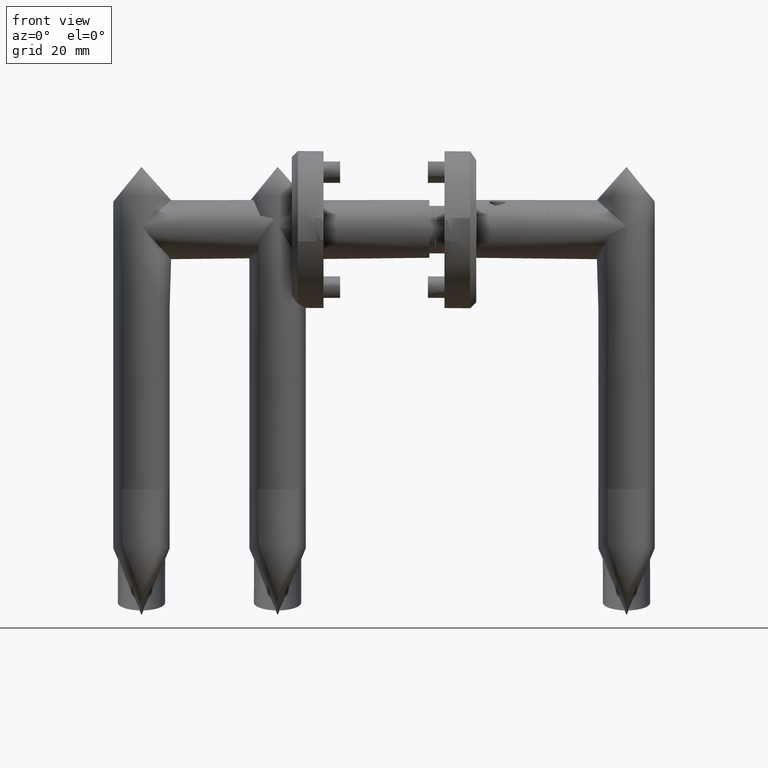
[diagram: clean part render]
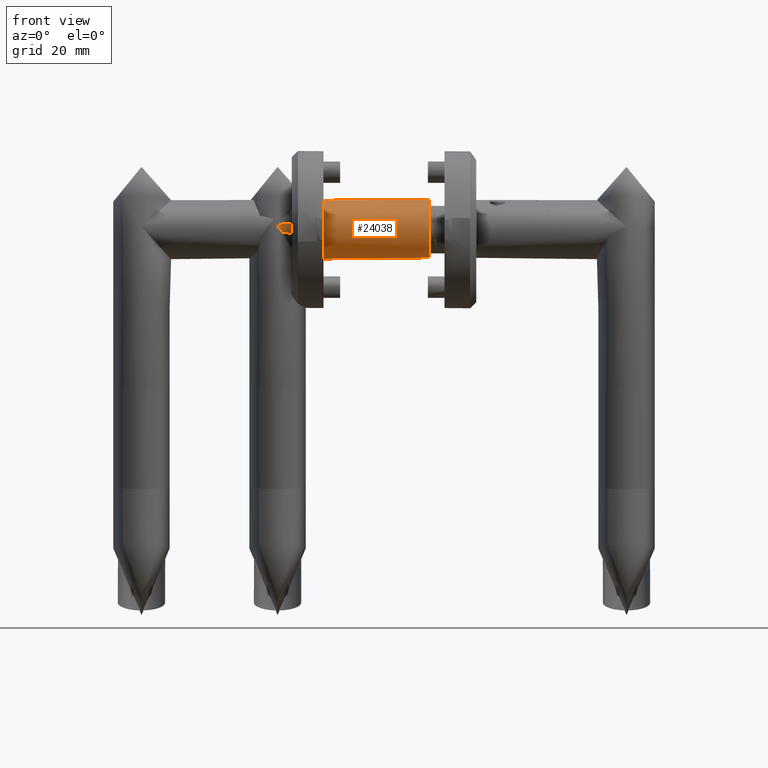
[diagram: same view with one face highlighted and labeled with its STEP entity id]
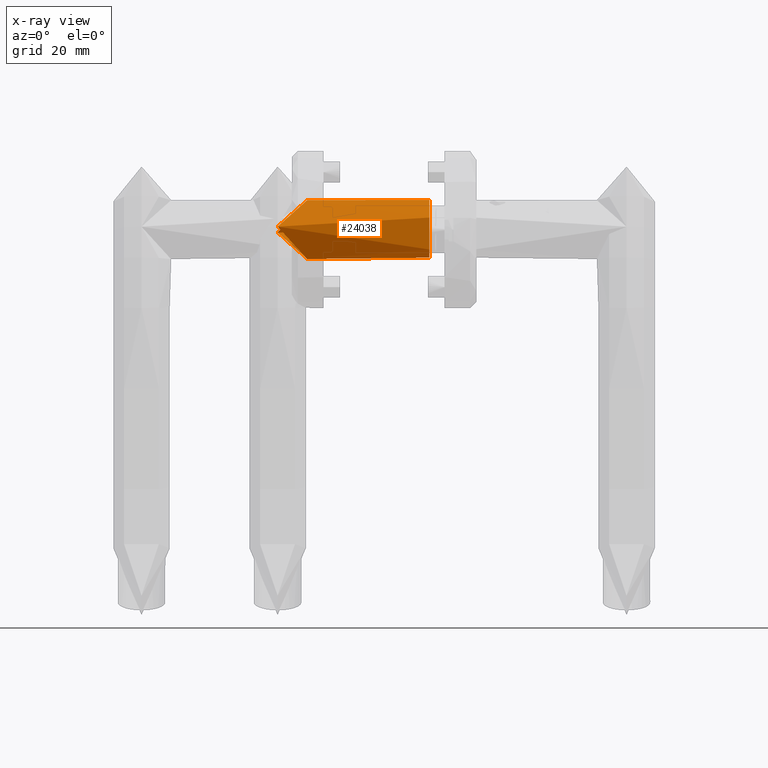
[diagram: x-ray of the same camera — body ghosted, the highlighted face saturated]
A machine part, front view. The second image highlights one B-rep face of the part: STEP entity #24038.
The next image is the same camera in x-ray: the body ghosted, the highlighted face saturated — about 0% of this face is hidden behind the body in this view.
In plain terms, the highlighted cylindrical surface (bore or boss wall) has radius 9.8 mm, axis along (1, -0, -0).
Its self-contained STEP definition (entity closure, byte-faithful):
#88 = CARTESIAN_POINT ( 'NONE',  ( -3.822092476344165000, 7.772197550461567200, 43.35162309113278700 ) ) ;
#95 = CARTESIAN_POINT ( 'NONE',  ( -0.4354537862329099800, 2.888818826240538800, 7.409396572554147300 ) ) ;
#129 = CARTESIAN_POINT ( 'NONE',  ( -19.55687169048619000, 0.9944342525369622700, 40.54689338331738200 ) ) ;
#232 = CARTESIAN_POINT ( 'NONE',  ( -8.679623662948470700, -9.735998293857719000, 50.06330580346536900 ) ) ;
#369 = CARTESIAN_POINT ( 'NONE',  ( -4.559211837365916500, -8.301884366891529900, 45.91049624265656300 ) ) ;
#377 = CARTESIAN_POINT ( 'NONE',  ( -0.1323713766238024900, -1.605290254277175600, 9.801990246998034500 ) ) ;
#665 = CARTESIAN_POINT ( 'NONE',  ( 1.734723475976807100E-015, 1.200153863164406100E-015, 10.26885880047777800 ) ) ;
#797 = CARTESIAN_POINT ( 'NONE',  ( -0.3288964127000877400, -2.522058451282503300, 8.897482933735240400 ) ) ;
#887 = CYLINDRICAL_SURFACE ( 'NONE', #30735, 9.799999999999998900 ) ;
#1030 = CARTESIAN_POINT ( 'NONE',  ( 1.734723475976807100E-015, 1.200153863164406100E-015, 10.26885880047777800 ) ) ;
#2133 = CARTESIAN_POINT ( 'NONE',  ( -10.78115167682853800, 9.750761067068380000, 50.20000000000000300 ) ) ;
#2191 = DIRECTION ( 'NONE',  ( -1.000000000000000000, 0.0000000000000000000, 0.0000000000000000000 ) ) ;
#2295 = CARTESIAN_POINT ( 'NONE',  ( -11.59908623459882700, -9.650260998292379700, 47.50679703102291300 ) ) ;
#2314 = VERTEX_POINT ( 'NONE', #27557 ) ;
#2432 = CARTESIAN_POINT ( 'NONE',  ( -8.958102105245132000, -9.764020545519423800, 50.06342446112105900 ) ) ;
#2497 = EDGE_CURVE ( 'NONE', #2314, #27583, #9742, .T. ) ;
#2564 = CARTESIAN_POINT ( 'NONE',  ( -9.933123786171968600, -9.803051068120685900, 49.11227937087824100 ) ) ;
#2616 = CIRCLE ( 'NONE', #27110, 9.799999999999998900 ) ;
#2953 = CARTESIAN_POINT ( 'NONE',  ( -0.3700320209831520200, 2.667527678341301600, 6.437236899734777800 ) ) ;
#2983 = CARTESIAN_POINT ( 'NONE',  ( -12.12738238625175100, 9.523585229207139200, 48.80344538462323100 ) ) ;
#3075 = CARTESIAN_POINT ( 'NONE',  ( -8.125438050755759500, -9.656883583677842600, 49.51716904174380600 ) ) ;
#3115 = CARTESIAN_POINT ( 'NONE',  ( -17.23546753403238100, 6.414054476674118100, 43.32092219073723500 ) ) ;
#3216 = CARTESIAN_POINT ( 'NONE',  ( -7.252903480286150300, 9.467308425313371200, 46.63530598957796500 ) ) ;
#3222 = CARTESIAN_POINT ( 'NONE',  ( -0.04322795053756368200, 0.9360888861668562600, 10.12572333441831200 ) ) ;
#3262 = CARTESIAN_POINT ( 'NONE',  ( -16.35884151676101800, 7.287737474074737600, 44.28620010502699200 ) ) ;
#3350 = CARTESIAN_POINT ( 'NONE',  ( -6.099047245898932000, -9.078745085069023400, 47.48967592933602300 ) ) ;
#3389 = CARTESIAN_POINT ( 'NONE',  ( -11.86073096395603000, 9.584779057249816600, 49.08163418561493800 ) ) ;
#3486 = CARTESIAN_POINT ( 'NONE',  ( -3.327717268254428300, 7.365594976994723100, 42.90097498391683200 ) ) ;
#3493 = CARTESIAN_POINT ( 'NONE',  ( -0.09556908775646549800, 1.365291422917513500, 5.059892389442349100 ) ) ;
#3628 = CARTESIAN_POINT ( 'NONE',  ( -5.058184410655903700, -8.595605264095139500, 46.42719150283925000 ) ) ;
#3636 = CARTESIAN_POINT ( 'NONE',  ( -0.1869176557382662700, -1.909812414266133900, 5.414643319666400800 ) ) ;
#3912 = CARTESIAN_POINT ( 'NONE',  ( -0.4183204291709260400, -2.832682197191989500, 8.043086749109450700 ) ) ;
#4049 = CARTESIAN_POINT ( 'NONE',  ( -0.3907851512414469200, -2.740880561465571100, 6.606534064987581400 ) ) ;
#6196 = CARTESIAN_POINT ( 'NONE',  ( -0.2156006298347865600, 2.044330871746715200, 9.456301505415478200 ) ) ;
#6464 = CARTESIAN_POINT ( 'NONE',  ( -1.365809117790841600, 5.003408993382722200, 41.21608856717416800 ) ) ;
#6472 = CARTESIAN_POINT ( 'NONE',  ( -0.3252775338832930600, 2.506290682298516700, 8.888870862167612700 ) ) ;
#6504 = CARTESIAN_POINT ( 'NONE',  ( -18.81430076159406900, 3.861443999490105700, 41.51591128650456900 ) ) ;
#6597 = CARTESIAN_POINT ( 'NONE',  ( -6.899350438750780700, -9.365099757242932200, 48.29676797993470000 ) ) ;
#6603 = CARTESIAN_POINT ( 'NONE',  ( -0.2986007168962589400, 2.400710657916890400, 9.040065071125264100 ) ) ;
#6740 = CARTESIAN_POINT ( 'NONE',  ( -0.3378688433032462400, 2.580359292329646300, 40.49050392256171400 ) ) ;
#6745 = CARTESIAN_POINT ( 'NONE',  ( -0.4354174939026728700, -2.888701178042784300, 7.683482782514622600 ) ) ;
#6888 = CARTESIAN_POINT ( 'NONE',  ( -0.4311242595999003600, -2.874746486377978800, 7.227262906925649800 ) ) ;
#7169 = CARTESIAN_POINT ( 'NONE',  ( 1.781215053811263000E-015, -0.3796331878166682200, 10.26885815542221400 ) ) ;
#7315 = CARTESIAN_POINT ( 'NONE',  ( -0.1326810078832712500, 1.607153852205576400, 5.199204663073087900 ) ) ;
#8365 = B_SPLINE_CURVE_WITH_KNOTS ( 'NONE', 3,
 ( #38109, #18962, #15476, #16000, #32362, #19230, #29023, #35588, #16432, #9991, #3216, #25931, #32507, #25648, #28746, #38388, #31969, #88, #3486, #25784, #9566, #13338, #6464, #12776, #41625, #35173, #22566, #6740, #12921, #38792, #28888, #41492, #9714, #32226, #9851, #19368, #29148, #22850, #10125, #13196, #32098, #35723, #13052, #19636, #22441, #35314, #369, #3628, #35457, #3350, #16146, #6597, #38938, #38521, #3075, #29293, #16287, #26063, #232, #38647, #22302 ),
 .UNSPECIFIED., .F., .F.,
 ( 4, 2, 1, 2, 2, 2, 2, 2, 2, 2, 2, 2, 2, 2, 2, 2, 2, 2, 2, 2, 2, 2, 2, 2, 2, 2, 2, 2, 2, 2, 4 ),
 ( -1.979899227334577800E-005, 0.0002697787099651128800, 0.0005593564122035715200, 0.001138511816680491900, 0.002296822625634322100, 0.004613444243541996900, 0.005771755052495834000, 0.006930065861449672000, 0.009246687479357362800, 0.01040499828831120700, 0.01156330909726505300, 0.01387993071517273400, 0.01503824152412657500, 0.01619655233308042000, 0.01735486314203426100, 0.01851317395098810500, 0.01967148475994194900, 0.02082979556889579000, 0.02198810637784963400, 0.02314641718680347800, 0.02430472799575731900, 0.02546303880471115900, 0.02777966042261884700, 0.03009628204052653200, 0.03241290365843421700, 0.03357121446738805400, 0.03472952527634189100, 0.03588783608529573500, 0.03646699148977265000, 0.03675656919201111800, 0.03704614689424958600 ),
 .UNSPECIFIED. ) ;
#8789 = CARTESIAN_POINT ( 'NONE',  ( -18.29762710991624900, -4.894691133510471000, 41.34582834160446700 ) ) ;
#8930 = CARTESIAN_POINT ( 'NONE',  ( -9.306582892055336800, -9.789312447703784100, 49.72240862092913000 ) ) ;
#9061 = CARTESIAN_POINT ( 'NONE',  ( -12.70426136182720200, -9.364300318384229300, 46.45657831840183900 ) ) ;
#9110 = B_SPLINE_CURVE_WITH_KNOTS ( 'NONE', 3,
 ( #9576, #25260, #25791, #28478, #28898, #3222, #25655, #12926, #41351, #9303, #32233, #38529, #6196, #15738, #28619, #6603, #6472, #9724, #32106, #22171, #13059, #19378, #95, #29031, #9860, #35462, #31700, #9442, #38122, #18968, #2953, #31837, #12634, #35043, #38257, #32784, #7315, #38798, #23273, #3493, #20060, #16723, #32514, #32641, #13619, #32372, #20197, #22713, #23136, #10543, #39208, #9999, #25935, #26495, #32928, #29712, #3636, #38943, #39354, #13203, #13488, #4049, #13761, #36009, #13348, #35596, #6888, #16996, #36146, #16437, #6745, #19642, #3912, #16863, #26071, #10403, #797, #35877, #39066, #19927, #29153, #377, #26363, #29434, #22860, #29300, #7169, #665 ),
 .UNSPECIFIED., .T., .F.,
 ( 4, 3, 3, 3, 3, 3, 3, 3, 3, 3, 3, 3, 3, 3, 3, 3, 3, 3, 3, 3, 3, 3, 3, 3, 3, 3, 3, 3, 3, 4 ),
 ( 0.0000000000000000000, 0.03448275862068965500, 0.06896551724137930900, 0.1034482758620689600, 0.1379310344827586200, 0.1724137931034482900, 0.2068965517241379300, 0.2413793103448276000, 0.2758620689655172400, 0.3103448275862069100, 0.3448275862068965700, 0.3793103448275861900, 0.4137931034482758600, 0.4482758620689655200, 0.4827586206896551900, 0.5172413793103448600, 0.5517241379310344800, 0.5862068965517240900, 0.6206896551724138100, 0.6551724137931034300, 0.6896551724137931500, 0.7241379310344827600, 0.7586206896551723800, 0.7931034482758621000, 0.8275862068965517100, 0.8620689655172413300, 0.8965517241379310500, 0.9310344827586206600, 0.9655172413793103900, 1.000000000000000000 ),
 .UNSPECIFIED. ) ;
#9303 = CARTESIAN_POINT ( 'NONE',  ( -0.1328079027327934400, 1.607916961330561700, 9.800305463808477700 ) ) ;
#9342 = CARTESIAN_POINT ( 'NONE',  ( -16.61481542424700900, -7.050376245932393500, 42.83067999288551400 ) ) ;
#9442 = CARTESIAN_POINT ( 'NONE',  ( -0.4182749411672410700, 2.832531539183548400, 6.956191829310237800 ) ) ;
#9566 = CARTESIAN_POINT ( 'NONE',  ( -2.384100189178385100, 6.440720921956224900, 42.06158807770409400 ) ) ;
#9576 = CARTESIAN_POINT ( 'NONE',  ( 1.734723475976807100E-015, 1.200153863164406100E-015, 10.26885880047777800 ) ) ;
#9613 = CARTESIAN_POINT ( 'NONE',  ( -12.92173237505569500, 9.305714617253128700, 47.97153941725662200 ) ) ;
#9714 = CARTESIAN_POINT ( 'NONE',  ( -0.005340164053814071800, -0.5053081143249752400, 40.54374387028988000 ) ) ;
#9724 = CARTESIAN_POINT ( 'NONE',  ( -0.3496586795409334900, 2.595515547792911700, 8.728946815938078500 ) ) ;
#9742 = B_SPLINE_CURVE_WITH_KNOTS ( 'NONE', 3,
 ( #27959, #28236, #2432, #28511, #8930, #21796, #2564, #28092, #40680, #2295, #25289, #9061, #37616, #34801, #15513, #18458, #22071, #15637, #38021, #9342, #11877, #31463, #8789, #12270, #37889, #18866, #34401, #41102, #21933, #41244, #15100, #37488, #21518, #9754, #32137, #129, #41668, #35076, #29066, #38431, #6504, #41392, #25428, #12532, #19274, #3115, #22478, #3262, #32268, #35217, #22609, #25690, #22343, #9613, #2983, #3389, #12822, #28790, #28931, #38691, #16040, #25558, #34944 ),
 .UNSPECIFIED., .F., .F.,
 ( 4, 2, 1, 2, 2, 2, 2, 2, 2, 2, 2, 2, 2, 2, 2, 2, 2, 2, 2, 2, 2, 2, 2, 2, 2, 2, 2, 2, 2, 2, 2, 4 ),
 ( -2.027826707009775800E-005, 0.0002694207216723776500, 0.0005591197104148529900, 0.001138517687899807600, 0.002297313642869726700, 0.004614905552809579200, 0.005773701507779512900, 0.006932497462749444800, 0.009250089372689323400, 0.01040888532765925700, 0.01156768128262919200, 0.01388527319256904100, 0.01504406914753896600, 0.01620286510250889100, 0.01736166105747881400, 0.01852045701244874100, 0.01909985498993370400, 0.01967925296741866400, 0.02083804892238859000, 0.02199684487735851700, 0.02315564083232844400, 0.02431443678729837100, 0.02547323274226829700, 0.02779082465220814400, 0.02894962060717807100, 0.03010841656214799700, 0.03242600847208784700, 0.03474360038202770800, 0.03590239633699763400, 0.03648179431448259800, 0.03677149330322507200, 0.03706119229196754700 ),
 .UNSPECIFIED. ) ;
#9754 = CARTESIAN_POINT ( 'NONE',  ( -19.60192454410137900, 0.02348972607566926800, 40.42801447100384800 ) ) ;
#9851 = CARTESIAN_POINT ( 'NONE',  ( -0.1307141320830874400, -1.639774746771381500, 40.80697728036403000 ) ) ;
#9860 = CARTESIAN_POINT ( 'NONE',  ( -0.4311381815473979700, 2.874791857985726600, 7.227702611852202500 ) ) ;
#9991 = CARTESIAN_POINT ( 'NONE',  ( -8.065908994393673500, 9.661441216882034100, 47.44126124070675100 ) ) ;
#9999 = CARTESIAN_POINT ( 'NONE',  ( -0.06310637153082374100, -1.110361413178787100, 4.943845459730386700 ) ) ;
#10125 = CARTESIAN_POINT ( 'NONE',  ( -0.7358922864373969000, -3.742833422756055100, 41.65656791852513400 ) ) ;
#10403 = CARTESIAN_POINT ( 'NONE',  ( -0.3697869579638371500, -2.666661204917319100, 8.564758903595306400 ) ) ;
#10543 = CARTESIAN_POINT ( 'NONE',  ( -6.897812140205509200E-005, -0.3805590716564420400, 4.731358774623267900 ) ) ;
#11877 = CARTESIAN_POINT ( 'NONE',  ( -17.30495411124256900, -6.336696433568049800, 42.21059699699834100 ) ) ;
#12270 = CARTESIAN_POINT ( 'NONE',  ( -18.47416030253962300, -4.575325320419398000, 41.19626981487196800 ) ) ;
#12490 = FACE_OUTER_BOUND ( 'NONE', #17864, .T. ) ;
#12532 = CARTESIAN_POINT ( 'NONE',  ( -18.17973878339824300, 5.092052224232015900, 42.25545421881975700 ) ) ;
#12634 = CARTESIAN_POINT ( 'NONE',  ( -0.2719463490837708600, 2.308787249372522300, 5.797056132452379300 ) ) ;
#12776 = CARTESIAN_POINT ( 'NONE',  ( -1.184172876111465600, 4.684468030650846200, 41.07368002647167100 ) ) ;
#12822 = CARTESIAN_POINT ( 'NONE',  ( -11.45794066649739100, 9.659704093133477400, 49.50017176917407400 ) ) ;
#12921 = CARTESIAN_POINT ( 'NONE',  ( -0.1636583601528391900, 1.825130106099597900, 40.41139842623707100 ) ) ;
#12926 = CARTESIAN_POINT ( 'NONE',  ( -0.08304751354218524500, 1.285183879410968200, 9.986366251840268000 ) ) ;
#13052 = CARTESIAN_POINT ( 'NONE',  ( -1.881425352976844500, -5.811317283478362400, 43.02171932004215900 ) ) ;
#13059 = CARTESIAN_POINT ( 'NONE',  ( -0.4354170493484947900, 2.888699736959099000, 7.863310219945206300 ) ) ;
#13160 = CARTESIAN_POINT ( 'NONE',  ( 0.0000000000000000000, 0.0000000000000000000, 0.0000000000000000000 ) ) ;
#13196 = CARTESIAN_POINT ( 'NONE',  ( -0.8770654420899091100, -4.066936604295786900, 41.83370123779437200 ) ) ;
#13203 = CARTESIAN_POINT ( 'NONE',  ( -0.3288534424449626700, -2.521980208999732700, 6.101314800225423200 ) ) ;
#13338 = CARTESIAN_POINT ( 'NONE',  ( -1.950744654241739900, 5.911674896972742800, 41.69064932271206900 ) ) ;
#13348 = CARTESIAN_POINT ( 'NONE',  ( -0.4239977293207165000, -2.851483284773357800, 7.047203057589163300 ) ) ;
#13488 = CARTESIAN_POINT ( 'NONE',  ( -0.3701412483092855200, -2.667913777310291700, 6.438127643400195100 ) ) ;
#13619 = CARTESIAN_POINT ( 'NONE',  ( -0.02720517741864077500, 0.7534884233588036200, 4.820716758195219500 ) ) ;
#13761 = CARTESIAN_POINT ( 'NONE',  ( -0.4071927410784368900, -2.795831505876216600, 6.779938730028306700 ) ) ;
#14172 = VERTEX_POINT ( 'NONE', #1030 ) ;
#14882 = EDGE_CURVE ( 'NONE', #32702, #32702, #2616, .T. ) ;
#15100 = CARTESIAN_POINT ( 'NONE',  ( -19.57236581195230200, -0.7606787115702364800, 40.39809434189678700 ) ) ;
#15117 = ORIENTED_EDGE ( 'NONE', *, *, #14882, .T. ) ;
#15476 = CARTESIAN_POINT ( 'NONE',  ( -10.64531852604271300, 9.763712888130880800, 50.06008156666619200 ) ) ;
#15513 = CARTESIAN_POINT ( 'NONE',  ( -14.34286558021196900, -8.703682513178099700, 44.91666299725849900 ) ) ;
#15637 = CARTESIAN_POINT ( 'NONE',  ( -15.88346130698386600, -7.689919755506922500, 43.49527833209285900 ) ) ;
#15738 = CARTESIAN_POINT ( 'NONE',  ( -0.2438665581174955000, 2.176849510962126600, 9.329083526198767000 ) ) ;
#16000 = CARTESIAN_POINT ( 'NONE',  ( -10.50932588373585700, 9.774533726116372300, 49.92022160000834700 ) ) ;
#16040 = CARTESIAN_POINT ( 'NONE',  ( -10.91699050626886700, 9.736375249644263300, 50.05992855177406400 ) ) ;
#16146 = CARTESIAN_POINT ( 'NONE',  ( -6.631038728587080700, -9.277841778562420300, 48.02717589811511800 ) ) ;
#16287 = CARTESIAN_POINT ( 'NONE',  ( -8.471185304002064600, -9.709744981693287300, 49.85824578862048600 ) ) ;
#16432 = CARTESIAN_POINT ( 'NONE',  ( -8.608199331678335400, 9.742461648893526100, 47.98503234901372800 ) ) ;
#16437 = CARTESIAN_POINT ( 'NONE',  ( -0.4354462700851997600, -2.888794461282913100, 7.501713492238867100 ) ) ;
#16723 = CARTESIAN_POINT ( 'NONE',  ( -0.07276660665860228100, 1.195263767240169600, 4.977640773624900200 ) ) ;
#16863 = CARTESIAN_POINT ( 'NONE',  ( -0.4070522529736656000, -2.795362649473176000, 8.221942249555910500 ) ) ;
#16996 = CARTESIAN_POINT ( 'NONE',  ( -0.4340130416390279300, -2.884161104360444900, 7.318411786602184500 ) ) ;
#17864 = EDGE_LOOP ( 'NONE', ( #32353, #25394 ) ) ;
#18458 = CARTESIAN_POINT ( 'NONE',  ( -14.86927786340678600, -8.409879499118000400, 44.42759415970173400 ) ) ;
#18866 = CARTESIAN_POINT ( 'NONE',  ( -18.93449609592971300, -3.569987768325951500, 40.81829364762172200 ) ) ;
#18962 = CARTESIAN_POINT ( 'NONE',  ( -10.71409871224507300, 9.757508143341192800, 50.13089407640329400 ) ) ;
#18968 = CARTESIAN_POINT ( 'NONE',  ( -0.3906389789736953200, 2.740375265106211900, 6.605224161148242100 ) ) ;
#19230 = CARTESIAN_POINT ( 'NONE',  ( -10.10152906238359800, 9.796302465062572300, 49.50195322481130900 ) ) ;
#19274 = CARTESIAN_POINT ( 'NONE',  ( -17.63713876241768500, 5.920753984737297400, 42.87238864416615800 ) ) ;
#19368 = CARTESIAN_POINT ( 'NONE',  ( -0.2017842117139969600, -2.012639279160209700, 40.92258249850716100 ) ) ;
#19378 = CARTESIAN_POINT ( 'NONE',  ( -0.4354464388560269600, 2.888795008384250600, 7.500179302032359300 ) ) ;
#19636 = CARTESIAN_POINT ( 'NONE',  ( -2.277872032952917600, -6.312778592837057400, 43.46647646055355100 ) ) ;
#19642 = CARTESIAN_POINT ( 'NONE',  ( -0.4295886053681864900, -2.870001744910803100, 7.864231248662992600 ) ) ;
#19927 = CARTESIAN_POINT ( 'NONE',  ( -0.1867671034181226700, -1.908973228751783300, 9.585925994989818100 ) ) ;
#20060 = CARTESIAN_POINT ( 'NONE',  ( -0.08378542986458936700, 1.281533704978539800, 5.016836817288117700 ) ) ;
#20197 = CARTESIAN_POINT ( 'NONE',  ( -0.005513396427664056300, 0.3785440804593344100, 4.748903933067063000 ) ) ;
#21518 = CARTESIAN_POINT ( 'NONE',  ( -19.60040654923692900, -0.1744445830851520100, 40.41452319263793700 ) ) ;
#21796 = CARTESIAN_POINT ( 'NONE',  ( -9.515500659121562100, -9.796858842082826900, 49.51869023826071700 ) ) ;
#21933 = CARTESIAN_POINT ( 'NONE',  ( -19.45508213700260900, -1.722993967992708400, 40.44210275531225600 ) ) ;
#22071 = CARTESIAN_POINT ( 'NONE',  ( -15.63315377116691900, -7.881004370855841000, 43.72451535855966400 ) ) ;
#22171 = CARTESIAN_POINT ( 'NONE',  ( -0.4110574812960955400, 2.812537379043493300, 8.228122392532284800 ) ) ;
#22302 = CARTESIAN_POINT ( 'NONE',  ( -8.818848323171447800, -9.750761067068374600, 50.20000000000000300 ) ) ;
#22343 = CARTESIAN_POINT ( 'NONE',  ( -13.44658655059032300, 9.113597222512583000, 47.41756045176468600 ) ) ;
#22441 = CARTESIAN_POINT ( 'NONE',  ( -3.144218692833239200, -7.220398735941332200, 44.41406965345219500 ) ) ;
#22478 = CARTESIAN_POINT ( 'NONE',  ( -16.58307214251814800, 7.080007088926005400, 44.04035523062489000 ) ) ;
#22566 = CARTESIAN_POINT ( 'NONE',  ( -0.4487529370178579600, 2.956471165920349100, 40.55400409517233800 ) ) ;
#22609 = CARTESIAN_POINT ( 'NONE',  ( -14.95615871285661300, 8.354104872386383100, 45.80799762448896900 ) ) ;
#22713 = CARTESIAN_POINT ( 'NONE',  ( 3.424645548386197600E-005, 0.1876088442727172600, 4.731033200820212100 ) ) ;
#22850 = CARTESIAN_POINT ( 'NONE',  ( -0.4881121991982217400, -3.074995326637736800, 41.33309563450126200 ) ) ;
#22860 = CARTESIAN_POINT ( 'NONE',  ( -0.06291557388091173500, -1.108687006611483300, 10.05682214906751400 ) ) ;
#23136 = CARTESIAN_POINT ( 'NONE',  ( -1.617368114437134400E-007, -0.001780461037002488400, 4.731141725421230700 ) ) ;
#23273 = CARTESIAN_POINT ( 'NONE',  ( -0.1073527456483416300, 1.449049140856487200, 5.102947961596580500 ) ) ;
#24038 = ADVANCED_FACE ( 'NONE', ( #34543, #12490, #33017 ), #887, .T. ) ;
#24258 = EDGE_LOOP ( 'NONE', ( #15117 ) ) ;
#24498 = DIRECTION ( 'NONE',  ( 1.000000000000000000, 0.0000000000000000000, 0.0000000000000000000 ) ) ;
#25192 = CARTESIAN_POINT ( 'NONE',  ( -9.799999999999993600, 0.0000000000000000000, 50.20000000000000300 ) ) ;
#25260 = CARTESIAN_POINT ( 'NONE',  ( 1.711297334326909700E-015, 0.1912892882332818400, 10.26885912550789300 ) ) ;
#25289 = CARTESIAN_POINT ( 'NONE',  ( -12.42826732350760300, -9.445277816446356700, 46.71811580347324600 ) ) ;
#25394 = ORIENTED_EDGE ( 'NONE', *, *, #28325, .T. ) ;
#25428 = CARTESIAN_POINT ( 'NONE',  ( -18.35053891930184000, 4.800909079189975300, 42.05919177361800400 ) ) ;
#25558 = CARTESIAN_POINT ( 'NONE',  ( -10.84823272582774800, 9.744011164854978100, 50.13086513213404800 ) ) ;
#25648 = CARTESIAN_POINT ( 'NONE',  ( -6.168333216820011300, 9.106957558256326000, 45.57331220558721400 ) ) ;
#25655 = CARTESIAN_POINT ( 'NONE',  ( -0.06313773203987446700, 1.110636382788912300, 10.05604479312929000 ) ) ;
#25690 = CARTESIAN_POINT ( 'NONE',  ( -14.46359547617758400, 8.637483721530895100, 46.33597306813465600 ) ) ;
#25784 = CARTESIAN_POINT ( 'NONE',  ( -3.084460778553992400, 7.145008534976538400, 42.68210824362568400 ) ) ;
#25791 = CARTESIAN_POINT ( 'NONE',  ( -0.005687839129654957000, 0.3820111784199187700, 10.25051546661125500 ) ) ;
#25931 = CARTESIAN_POINT ( 'NONE',  ( -6.981974205617506300, 9.390431377133850800, 46.36827942118516400 ) ) ;
#25935 = CARTESIAN_POINT ( 'NONE',  ( -0.08299369442343859600, -1.284755754752715500, 5.013437405875519600 ) ) ;
#26063 = CARTESIAN_POINT ( 'NONE',  ( -8.540575620484421600, -9.718989461199511100, 49.92656147905418600 ) ) ;
#26071 = CARTESIAN_POINT ( 'NONE',  ( -0.3902322305957118800, -2.738962581734727000, 8.398396888525338600 ) ) ;
#26363 = CARTESIAN_POINT ( 'NONE',  ( -0.1063847172770723400, -1.448789352924916500, 9.902254952866767800 ) ) ;
#26495 = CARTESIAN_POINT ( 'NONE',  ( -0.1071180369502164200, -1.453630875098663300, 5.100469196099361100 ) ) ;
#27110 = AXIS2_PLACEMENT_3D ( 'NONE', #40982, #31058, #24498 ) ;
#27557 = CARTESIAN_POINT ( 'NONE',  ( -8.818848323171447800, -9.750761067068374600, 50.20000000000000300 ) ) ;
#27583 = VERTEX_POINT ( 'NONE', #2133 ) ;
#27959 = CARTESIAN_POINT ( 'NONE',  ( -8.818848323171447800, -9.750761067068374600, 50.20000000000000300 ) ) ;
#28092 = CARTESIAN_POINT ( 'NONE',  ( -10.21125631262081000, -9.795327149317227400, 48.84270483719772900 ) ) ;
#28236 = CARTESIAN_POINT ( 'NONE',  ( -8.887595518348112100, -9.757678622053447300, 50.13253868357889300 ) ) ;
#28325 = EDGE_CURVE ( 'NONE', #27583, #2314, #8365, .T. ) ;
#28478 = CARTESIAN_POINT ( 'NONE',  ( -0.01643922643483272700, 0.5673963252938691900, 10.21492501809459300 ) ) ;
#28511 = CARTESIAN_POINT ( 'NONE',  ( -9.097514050451367900, -9.775039783510079500, 49.92691211887256500 ) ) ;
#28619 = CARTESIAN_POINT ( 'NONE',  ( -0.2719238999092248300, 2.295130633535264600, 9.191259280082913800 ) ) ;
#28746 = CARTESIAN_POINT ( 'NONE',  ( -5.362739603939121300, 8.757479006271635700, 44.79546316370758800 ) ) ;
#28790 = CARTESIAN_POINT ( 'NONE',  ( -11.32320770502743400, 9.681864156772459000, 49.63989365649529600 ) ) ;
#28888 = CARTESIAN_POINT ( 'NONE',  ( -0.01497381710599176800, 0.6672929139056486000, 40.40799774066881200 ) ) ;
#28898 = CARTESIAN_POINT ( 'NONE',  ( -0.02719061374001049600, 0.7527814721678195400, 10.17933456957793200 ) ) ;
#28931 = CARTESIAN_POINT ( 'NONE',  ( -11.12039660128999200, 9.710881351917258500, 49.84978358320229600 ) ) ;
#29023 = CARTESIAN_POINT ( 'NONE',  ( -9.693965110206585600, 9.803193543532556100, 49.08552853855917400 ) ) ;
#29031 = CARTESIAN_POINT ( 'NONE',  ( -0.4340157285619865000, 2.884169698778232100, 7.318730521170618200 ) ) ;
#29066 = CARTESIAN_POINT ( 'NONE',  ( -19.18512488966721500, 2.845879091641908300, 41.06269556927359300 ) ) ;
#29148 = CARTESIAN_POINT ( 'NONE',  ( -0.3805385717792937300, -2.729507206215722200, 41.18560233328551600 ) ) ;
#29153 = CARTESIAN_POINT ( 'NONE',  ( -0.1583580359705326900, -1.761791155629434600, 9.701725541129302900 ) ) ;
#29293 = CARTESIAN_POINT ( 'NONE',  ( -8.263415855200518600, -9.679798220480790900, 49.65346597771015500 ) ) ;
#29300 = CARTESIAN_POINT ( 'NONE',  ( -0.02300272790866360300, -0.7581509683960955300, 10.19646775247138100 ) ) ;
#29434 = CARTESIAN_POINT ( 'NONE',  ( -0.08287199686703580800, -1.283955025719177400, 9.986999347365580700 ) ) ;
#29712 = CARTESIAN_POINT ( 'NONE',  ( -0.1590607074081907000, -1.765585746208683900, 5.301093781256599700 ) ) ;
#30735 = AXIS2_PLACEMENT_3D ( 'NONE', #25192, #31506, #2191 ) ;
#31058 = DIRECTION ( 'NONE',  ( 0.0000000000000000000, 0.0000000000000000000, 1.000000000000000000 ) ) ;
#31463 = CARTESIAN_POINT ( 'NONE',  ( -17.72911590430352600, -5.803429343303750300, 41.83552937871947800 ) ) ;
#31506 = DIRECTION ( 'NONE',  ( -1.224646799147353200E-016, -0.0000000000000000000, -1.000000000000000000 ) ) ;
#31700 = CARTESIAN_POINT ( 'NONE',  ( -0.4238803341273111900, 2.851097353851670800, 7.045040297815031500 ) ) ;
#31837 = CARTESIAN_POINT ( 'NONE',  ( -0.3288181050020654300, 2.521832504811480000, 6.101262376907850000 ) ) ;
#31969 = CARTESIAN_POINT ( 'NONE',  ( -4.073405309276757300, 7.958678543659710900, 43.58353818036720600 ) ) ;
#32098 = CARTESIAN_POINT ( 'NONE',  ( -1.184743794750603900, -4.683598508200599800, 42.20823474367890800 ) ) ;
#32106 = CARTESIAN_POINT ( 'NONE',  ( -0.3701249467926541700, 2.667856158209772400, 8.562005341469481200 ) ) ;
#32137 = CARTESIAN_POINT ( 'NONE',  ( -19.58880334273469600, 0.6102747407669542000, 40.48569725387709200 ) ) ;
#32226 = CARTESIAN_POINT ( 'NONE',  ( -0.03287847892083076800, -0.8872922901271068600, 40.61808110777844400 ) ) ;
#32233 = CARTESIAN_POINT ( 'NONE',  ( -0.1588885663860089000, 1.764720323458921700, 9.699615155719485000 ) ) ;
#32268 = CARTESIAN_POINT ( 'NONE',  ( -15.90204479649042200, 7.674279694840770100, 44.78451622042364700 ) ) ;
#32353 = ORIENTED_EDGE ( 'NONE', *, *, #2497, .T. ) ;
#32362 = CARTESIAN_POINT ( 'NONE',  ( -10.30537434972743700, 9.788618540897056500, 49.71069382279221600 ) ) ;
#32372 = CARTESIAN_POINT ( 'NONE',  ( -0.01635928692315241600, 0.5660162519090690100, 4.784810345631141700 ) ) ;
#32507 = CARTESIAN_POINT ( 'NONE',  ( -6.440210824276055800, 9.210498766144715100, 45.83778407005111400 ) ) ;
#32514 = CARTESIAN_POINT ( 'NONE',  ( -0.06283003490976067600, 1.107935499451391500, 4.942878598907392500 ) ) ;
#32641 = CARTESIAN_POINT ( 'NONE',  ( -0.04295689141207745300, 0.9332789638738352400, 4.873354249472378700 ) ) ;
#32702 = VERTEX_POINT ( 'NONE', #13160 ) ;
#32784 = CARTESIAN_POINT ( 'NONE',  ( -0.1586894398083998100, 1.763599240156405100, 5.299602542095833300 ) ) ;
#32928 = CARTESIAN_POINT ( 'NONE',  ( -0.1330893721792035500, -1.609608310653673600, 5.200781488677980800 ) ) ;
#33017 = FACE_OUTER_BOUND ( 'NONE', #24258, .T. ) ;
#34242 = EDGE_CURVE ( 'NONE', #14172, #14172, #9110, .T. ) ;
#34401 = CARTESIAN_POINT ( 'NONE',  ( -19.18307453643759800, -2.853374114308970400, 40.62657390618714000 ) ) ;
#34543 = FACE_BOUND ( 'NONE', #36098, .T. ) ;
#34801 = CARTESIAN_POINT ( 'NONE',  ( -13.53081543896512300, -9.066914877889761500, 45.67728920245188100 ) ) ;
#34944 = CARTESIAN_POINT ( 'NONE',  ( -10.78115167682853800, 9.750761067068380000, 50.20000000000000300 ) ) ;
#35043 = CARTESIAN_POINT ( 'NONE',  ( -0.2151425684714988200, 2.042182170442419200, 5.541637852098261000 ) ) ;
#35076 = CARTESIAN_POINT ( 'NONE',  ( -19.37456575136863200, 2.123037369340074100, 40.81626804128786300 ) ) ;
#35173 = CARTESIAN_POINT ( 'NONE',  ( -0.7078676284221849800, 3.676910704049984000, 40.72269182935052400 ) ) ;
#35217 = CARTESIAN_POINT ( 'NONE',  ( -15.66886123754730400, 7.853707913919634200, 45.03766718075785000 ) ) ;
#35314 = CARTESIAN_POINT ( 'NONE',  ( -3.602315216270531600, -7.614187279570402600, 44.90400642496852200 ) ) ;
#35457 = CARTESIAN_POINT ( 'NONE',  ( -5.834826274273881500, -8.966588457138154700, 47.22120783465327100 ) ) ;
#35462 = CARTESIAN_POINT ( 'NONE',  ( -0.4282606345328093800, 2.865414017193221000, 7.136674702533786900 ) ) ;
#35588 = CARTESIAN_POINT ( 'NONE',  ( -9.422424345884310900, 9.796500578202016000, 48.80931891200784600 ) ) ;
#35596 = CARTESIAN_POINT ( 'NONE',  ( -0.4282354775607727900, -2.865331868395512700, 7.136114027249115000 ) ) ;
#35723 = CARTESIAN_POINT ( 'NONE',  ( -1.350843507458502800, -4.975998675339153200, 42.40522559821631200 ) ) ;
#35877 = CARTESIAN_POINT ( 'NONE',  ( -0.2716078295454158500, -2.307259130240835200, 9.204518789773168000 ) ) ;
#36009 = CARTESIAN_POINT ( 'NONE',  ( -0.4183960665732899800, -2.832932691807644100, 6.958114948402211100 ) ) ;
#36098 = EDGE_LOOP ( 'NONE', ( #38945 ) ) ;
#36146 = CARTESIAN_POINT ( 'NONE',  ( -0.4354606581764632300, -2.888841102902977500, 7.410828847100989800 ) ) ;
#37488 = CARTESIAN_POINT ( 'NONE',  ( -19.58559924404195500, -0.5660802751373063000, 40.39962517792092500 ) ) ;
#37616 = CARTESIAN_POINT ( 'NONE',  ( -13.25533667706699200, -9.175265824967093300, 45.93634715065549300 ) ) ;
#37889 = CARTESIAN_POINT ( 'NONE',  ( -18.79203437115819900, -3.913818673589089400, 40.93298932059874300 ) ) ;
#38021 = CARTESIAN_POINT ( 'NONE',  ( -16.37440298952769500, -7.274654125867066900, 43.04825085411008700 ) ) ;
#38109 = CARTESIAN_POINT ( 'NONE',  ( -10.78115167682853800, 9.750761067068380000, 50.20000000000000300 ) ) ;
#38122 = CARTESIAN_POINT ( 'NONE',  ( -0.4070641552471009900, 2.795399909847302600, 6.778494892300652300 ) ) ;
#38257 = CARTESIAN_POINT ( 'NONE',  ( -0.1867406781653627700, 1.908879630977367700, 5.413928711921202300 ) ) ;
#38388 = CARTESIAN_POINT ( 'NONE',  ( -4.838302710255780100, 8.473450516611338300, 44.29678438966985300 ) ) ;
#38431 = CARTESIAN_POINT ( 'NONE',  ( -19.07220508877102100, 3.192895358987260400, 41.20341055389685900 ) ) ;
#38521 = CARTESIAN_POINT ( 'NONE',  ( -7.713119444693295400, -9.579309089393433400, 49.10893260444160500 ) ) ;
#38529 = CARTESIAN_POINT ( 'NONE',  ( -0.1873347015520776500, 1.911812232531303800, 9.583519484632191200 ) ) ;
#38647 = CARTESIAN_POINT ( 'NONE',  ( -8.750129910019985900, -9.743846408220120400, 50.13256692713657300 ) ) ;
#38691 = CARTESIAN_POINT ( 'NONE',  ( -11.05267424826100800, 9.719849691261897500, 49.91979809168530800 ) ) ;
#38792 = CARTESIAN_POINT ( 'NONE',  ( -0.09891409049183121100, 1.442549621057120700, 40.39480958583170900 ) ) ;
#38798 = CARTESIAN_POINT ( 'NONE',  ( -0.1196767919207069600, 1.528931158230161900, 5.149005723561714400 ) ) ;
#38938 = CARTESIAN_POINT ( 'NONE',  ( -7.440390569529078800, -9.515834418269349700, 48.83764630206777500 ) ) ;
#38943 = CARTESIAN_POINT ( 'NONE',  ( -0.2154620635836934600, -2.043681126153658500, 5.543074919613032700 ) ) ;
#38945 = ORIENTED_EDGE ( 'NONE', *, *, #34242, .T. ) ;
#39066 = CARTESIAN_POINT ( 'NONE',  ( -0.2150473454605537100, -2.041735195914800900, 9.458790259917600800 ) ) ;
#39208 = CARTESIAN_POINT ( 'NONE',  ( -0.02333172574559400400, -0.7615727300309309600, 4.804661567440121000 ) ) ;
#39354 = CARTESIAN_POINT ( 'NONE',  ( -0.2725508792745478500, -2.311418549928708100, 5.799938119506297300 ) ) ;
#40680 = CARTESIAN_POINT ( 'NONE',  ( -11.04470702277952500, -9.736578829071858000, 48.03798000607867600 ) ) ;
#40982 = CARTESIAN_POINT ( 'NONE',  ( -9.799999999999998900, 0.0000000000000000000, 0.0000000000000000000 ) ) ;
#41102 = CARTESIAN_POINT ( 'NONE',  ( -19.28944007282997600, -2.477871342538731500, 40.54950431540300600 ) ) ;
#41244 = CARTESIAN_POINT ( 'NONE',  ( -19.51560705958867800, -1.340910930327691400, 40.41074279346614200 ) ) ;
#41351 = CARTESIAN_POINT ( 'NONE',  ( -0.1067272390795779700, 1.451113599202201500, 9.900995771897472200 ) ) ;
#41392 = CARTESIAN_POINT ( 'NONE',  ( -18.66872528151769500, 4.184035812240750800, 41.68837817478859600 ) ) ;
#41492 = CARTESIAN_POINT ( 'NONE',  ( 0.003939981011223333400, 0.2710321771112828600, 40.43849661807717400 ) ) ;
#41625 = CARTESIAN_POINT ( 'NONE',  ( -0.8556810057988674100, 4.021924351463616700, 40.82737455114961000 ) ) ;
#41668 = CARTESIAN_POINT ( 'NONE',  ( -19.45008360577858400, 1.749665987756792200, 40.71175749698197400 ) ) ;